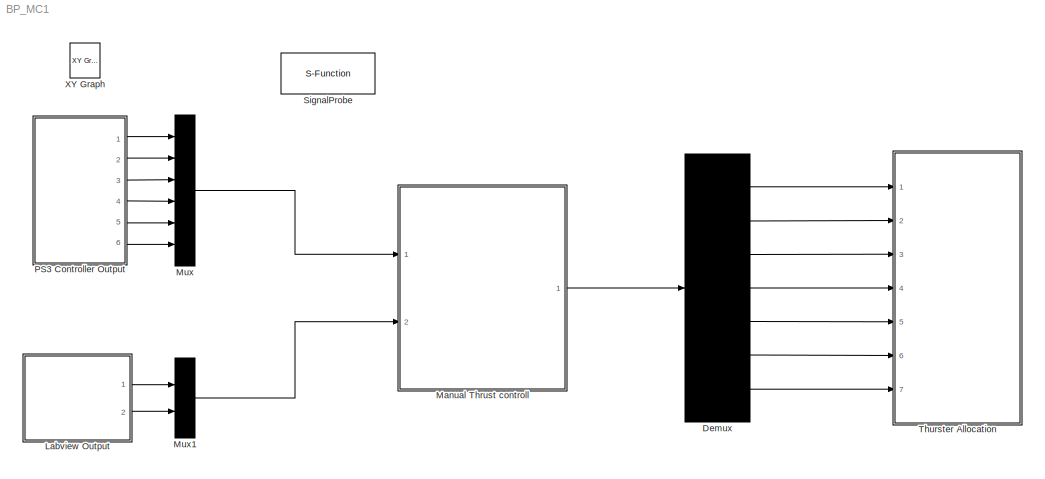
MODEL BP_MC1
KIND model
BLOCK [Demux] Demux
  Outputs = 7
  Ports = [1, 7]
  SID = 66
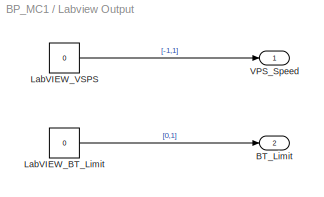
BLOCK [SubSystem] Labview Output
  FunctionWithSeparateData = off
  MaskHideContents = off
  MinAlgLoopOccurrences = off
  Opaque = off
  Ports = [0, 2]
  PropExecContextOutsideSubsystem = off
  RTWSystemCode = Auto
  RequestExecContextInheritance = off
  SID = 42
BLOCK [Outport] Labview Output/BT_Limit
  IconDisplay = Port number
  OutDataType = fixdt(1, 16)
  OutScaling = 2^0
  Port = 2
  SID = 47
BLOCK [Constant] Labview Output/LabVIEW_BT_Limit
  OutDataType = fixdt(1, 16)
  OutScaling = 2^0
  SID = 46
  Value = 0
BLOCK [Constant] Labview Output/LabVIEW_VSPS
  OutDataType = fixdt(1, 16)
  OutScaling = 2^0
  SID = 45
  Value = 0
BLOCK [Outport] Labview Output/VPS_Speed
  IconDisplay = Port number
  OutDataType = fixdt(1, 16)
  OutScaling = 2^0
  SID = 44
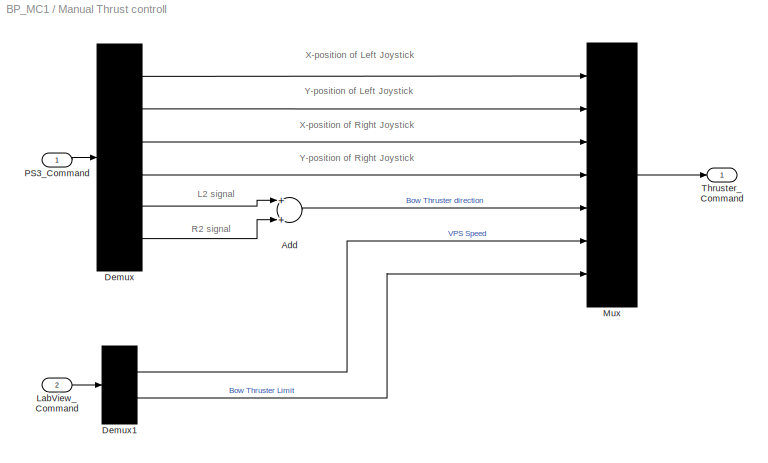
BLOCK [SubSystem] Manual Thrust controll
  FunctionWithSeparateData = off
  MaskHideContents = off
  MinAlgLoopOccurrences = off
  Opaque = off
  Ports = [2, 1]
  PropExecContextOutsideSubsystem = off
  RTWSystemCode = Auto
  RequestExecContextInheritance = off
  SID = 48
BLOCK [Sum] Manual Thrust controll/Add
  InputSameDT = off
  OutDataType = fixdt(1, 16)
  OutDataTypeMode = Inherit via internal rule
  OutDataTypeStr = Inherit: Inherit via internal rule
  OutScaling = 2^-10
  Ports = [2, 1]
  SID = 57
  SaturateOnIntegerOverflow = off
BLOCK [Demux] Manual Thrust controll/Demux
  Outputs = 6
  Ports = [1, 6]
  SID = 55
BLOCK [Demux] Manual Thrust controll/Demux1
  Outputs = 2
  Ports = [1, 2]
  SID = 58
BLOCK [Inport] Manual Thrust controll/LabView_Command
  IconDisplay = Port number
  OutDataType = fixdt(1, 16)
  OutScaling = 2^0
  Port = 2
  SID = 53
BLOCK [Mux] Manual Thrust controll/Mux
  Inputs = 7
  Ports = [7, 1]
  SID = 56
BLOCK [Inport] Manual Thrust controll/PS3_Command
  IconDisplay = Port number
  OutDataType = fixdt(1, 16)
  OutScaling = 2^0
  SID = 49
BLOCK [Outport] Manual Thrust controll/Thruster_Command
  IconDisplay = Port number
  OutDataType = fixdt(1, 16)
  OutScaling = 2^0
  SID = 50
BLOCK [Mux] Mux
  Inputs = 6
  Ports = [6, 1]
  SID = 51
BLOCK [Mux] Mux1
  Inputs = 2
  Ports = [2, 1]
  SID = 52
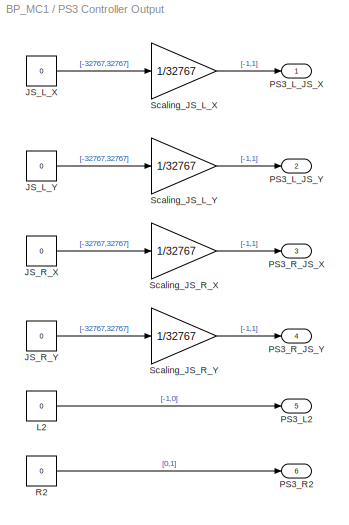
BLOCK [SubSystem] PS3 Controller Output
  FunctionWithSeparateData = off
  MaskHideContents = off
  MinAlgLoopOccurrences = off
  Opaque = off
  Ports = [0, 6]
  PropExecContextOutsideSubsystem = off
  RTWSystemCode = Auto
  RequestExecContextInheritance = off
  SID = 5
BLOCK [Constant] PS3 Controller Output/JS_L_X
  OutDataType = fixdt(1, 16)
  OutScaling = 2^0
  SID = 8
  Value = 0
BLOCK [Constant] PS3 Controller Output/JS_L_Y
  OutDataType = fixdt(1, 16)
  OutScaling = 2^0
  SID = 11
  Value = 0
BLOCK [Constant] PS3 Controller Output/JS_R_X
  OutDataType = fixdt(1, 16)
  OutScaling = 2^0
  SID = 14
  Value = 0
BLOCK [Constant] PS3 Controller Output/JS_R_Y
  OutDataType = fixdt(1, 16)
  OutScaling = 2^0
  SID = 16
  Value = 0
BLOCK [Constant] PS3 Controller Output/L2
  OutDataType = fixdt(1, 16)
  OutScaling = 2^0
  SID = 114
  Value = 0
BLOCK [Outport] PS3 Controller Output/PS3_L2
  IconDisplay = Port number
  OutDataType = fixdt(1, 16)
  OutScaling = 2^0
  Port = 5
  SID = 26
BLOCK [Outport] PS3 Controller Output/PS3_L_JS_X
  IconDisplay = Port number
  OutDataType = fixdt(1, 16)
  OutScaling = 2^0
  SID = 7
BLOCK [Outport] PS3 Controller Output/PS3_L_JS_Y
  IconDisplay = Port number
  OutDataType = fixdt(1, 16)
  OutScaling = 2^0
  Port = 2
  SID = 13
BLOCK [Outport] PS3 Controller Output/PS3_R2
  IconDisplay = Port number
  OutDataType = fixdt(1, 16)
  OutScaling = 2^0
  Port = 6
  SID = 36
BLOCK [Outport] PS3 Controller Output/PS3_R_JS_X
  IconDisplay = Port number
  OutDataType = fixdt(1, 16)
  OutScaling = 2^0
  Port = 3
  SID = 18
BLOCK [Outport] PS3 Controller Output/PS3_R_JS_Y
  IconDisplay = Port number
  OutDataType = fixdt(1, 16)
  OutScaling = 2^0
  Port = 4
  SID = 19
BLOCK [Constant] PS3 Controller Output/R2
  OutDataType = fixdt(1, 16)
  OutScaling = 2^0
  SID = 115
  Value = 0
BLOCK [Gain] PS3 Controller Output/Scaling_JS_L_X
  Gain = 1/32767
  OutDataType = fixdt(1, 16)
  OutDataTypeMode = Inherit via internal rule
  OutDataTypeStr = Inherit: Inherit via internal rule
  OutScaling = 2^0
  ParamDataTypeStr = Inherit: Inherit via internal rule
  ParameterDataType = fixdt(1, 16)
  ParameterDataTypeMode = Inherit via internal rule
  ParameterScaling = 2^0
  SID = 9
  SaturateOnIntegerOverflow = off
BLOCK [Gain] PS3 Controller Output/Scaling_JS_L_Y
  Gain = 1/32767
  OutDataType = fixdt(1, 16)
  OutDataTypeMode = Inherit via internal rule
  OutDataTypeStr = Inherit: Inherit via internal rule
  OutScaling = 2^0
  ParamDataTypeStr = Inherit: Inherit via internal rule
  ParameterDataType = fixdt(1, 16)
  ParameterDataTypeMode = Inherit via internal rule
  ParameterScaling = 2^0
  SID = 12
  SaturateOnIntegerOverflow = off
BLOCK [Gain] PS3 Controller Output/Scaling_JS_R_X
  Gain = 1/32767
  OutDataType = fixdt(1, 16)
  OutDataTypeMode = Inherit via internal rule
  OutDataTypeStr = Inherit: Inherit via internal rule
  OutScaling = 2^0
  ParamDataTypeStr = Inherit: Inherit via internal rule
  ParameterDataType = fixdt(1, 16)
  ParameterDataTypeMode = Inherit via internal rule
  ParameterScaling = 2^0
  SID = 15
  SaturateOnIntegerOverflow = off
BLOCK [Gain] PS3 Controller Output/Scaling_JS_R_Y
  Gain = 1/32767
  OutDataType = fixdt(1, 16)
  OutDataTypeMode = Inherit via internal rule
  OutDataTypeStr = Inherit: Inherit via internal rule
  OutScaling = 2^0
  ParamDataTypeStr = Inherit: Inherit via internal rule
  ParameterDataType = fixdt(1, 16)
  ParameterDataTypeMode = Inherit via internal rule
  ParameterScaling = 2^0
  SID = 17
  SaturateOnIntegerOverflow = off
BLOCK [S-Function] SignalProbe
  Description = Use this block with SIT.
  EnableBusSupport = off
  FunctionName = SignalProbe
  MaskDescription = The LabVIEW Simulation Interface Toolkit uses the SignalProbe block to probe the signals in the model. The SignalProbe block must be on the top level of the model hierarchy. You can have only one SignalProbe block per model file. Do not rename the SignalProbe block. Do not change the name of another model block to SignalProbe.
  MaskIconFrame = on
  MaskIconOpaque = on
  MaskIconRotate = none
  MaskIconUnits = autoscale
  MaskPortRotate = default
  Parameters = 1
  Ports = []
  PreSaveFcn = NISIT_ModelVars;
  SID = 40
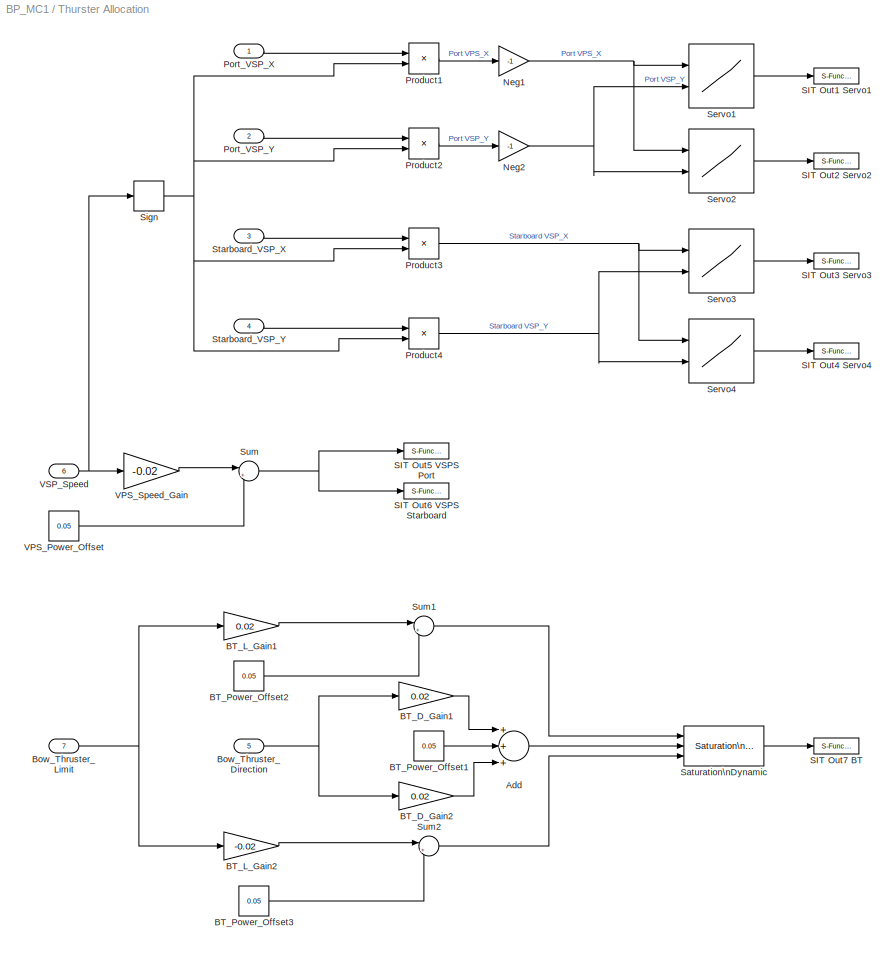
BLOCK [SubSystem] Thurster Allocation
  FunctionWithSeparateData = off
  MaskHideContents = off
  MinAlgLoopOccurrences = off
  Opaque = off
  Ports = [7]
  PropExecContextOutsideSubsystem = off
  RTWSystemCode = Auto
  RequestExecContextInheritance = off
  SID = 62
BLOCK [Sum] Thurster Allocation/Add
  InputSameDT = off
  Inputs = +++
  OutDataType = fixdt(1, 16)
  OutDataTypeMode = Inherit via internal rule
  OutDataTypeStr = Inherit: Inherit via internal rule
  OutScaling = 2^-10
  Ports = [3, 1]
  SID = 97
  SaturateOnIntegerOverflow = off
BLOCK [Gain] Thurster Allocation/BT_D_Gain1
  Gain = 0.02
  OutDataType = fixdt(1, 16)
  OutDataTypeMode = Inherit via internal rule
  OutDataTypeStr = Inherit: Inherit via internal rule
  OutScaling = 2^0
  ParamDataTypeStr = Inherit: Inherit via internal rule
  ParameterDataType = fixdt(1, 16)
  ParameterDataTypeMode = Inherit via internal rule
  ParameterScaling = 2^0
  SID = 99
  SaturateOnIntegerOverflow = off
BLOCK [Gain] Thurster Allocation/BT_D_Gain2
  Gain = 0.02
  OutDataType = fixdt(1, 16)
  OutDataTypeMode = Inherit via internal rule
  OutDataTypeStr = Inherit: Inherit via internal rule
  OutScaling = 2^0
  ParamDataTypeStr = Inherit: Inherit via internal rule
  ParameterDataType = fixdt(1, 16)
  ParameterDataTypeMode = Inherit via internal rule
  ParameterScaling = 2^0
  SID = 100
  SaturateOnIntegerOverflow = off
BLOCK [Gain] Thurster Allocation/BT_L_Gain1
  Gain = 0.02
  OutDataType = fixdt(1, 16)
  OutDataTypeMode = Inherit via internal rule
  OutDataTypeStr = Inherit: Inherit via internal rule
  OutScaling = 2^0
  ParamDataTypeStr = Inherit: Inherit via internal rule
  ParameterDataType = fixdt(1, 16)
  ParameterDataTypeMode = Inherit via internal rule
  ParameterScaling = 2^0
  SID = 105
  SaturateOnIntegerOverflow = off
BLOCK [Gain] Thurster Allocation/BT_L_Gain2
  Gain = -0.02
  OutDataType = fixdt(1, 16)
  OutDataTypeMode = Inherit via internal rule
  OutDataTypeStr = Inherit: Inherit via internal rule
  OutScaling = 2^0
  ParamDataTypeStr = Inherit: Inherit via internal rule
  ParameterDataType = fixdt(1, 16)
  ParameterDataTypeMode = Inherit via internal rule
  ParameterScaling = 2^0
  SID = 106
  SaturateOnIntegerOverflow = off
BLOCK [Constant] Thurster Allocation/BT_Power_Offset1
  OutDataType = fixdt(1, 16)
  OutScaling = 2^0
  SID = 102
  Value = 0.05
BLOCK [Constant] Thurster Allocation/BT_Power_Offset2
  OutDataType = fixdt(1, 16)
  OutScaling = 2^0
  SID = 109
  Value = 0.05
BLOCK [Constant] Thurster Allocation/BT_Power_Offset3
  OutDataType = fixdt(1, 16)
  OutScaling = 2^0
  SID = 110
  Value = 0.05
BLOCK [Inport] Thurster Allocation/Bow_Thruster_Direction
  IconDisplay = Port number
  OutDataType = fixdt(1, 16)
  OutScaling = 2^0
  Port = 5
  SID = 70
BLOCK [Inport] Thurster Allocation/Bow_Thruster_Limit
  IconDisplay = Port number
  OutDataType = fixdt(1, 16)
  OutScaling = 2^0
  Port = 7
  SID = 72
BLOCK [Gain] Thurster Allocation/Neg1
  Gain = -1
  OutDataType = fixdt(1, 16)
  OutDataTypeMode = Inherit via internal rule
  OutDataTypeStr = Inherit: Inherit via internal rule
  OutScaling = 2^0
  ParamDataTypeStr = Inherit: Inherit via internal rule
  ParameterDataType = fixdt(1, 16)
  ParameterDataTypeMode = Inherit via internal rule
  ParameterScaling = 2^0
  SID = 76
  SaturateOnIntegerOverflow = off
BLOCK [Gain] Thurster Allocation/Neg2
  Gain = -1
  OutDataType = fixdt(1, 16)
  OutDataTypeMode = Inherit via internal rule
  OutDataTypeStr = Inherit: Inherit via internal rule
  OutScaling = 2^0
  ParamDataTypeStr = Inherit: Inherit via internal rule
  ParameterDataType = fixdt(1, 16)
  ParameterDataTypeMode = Inherit via internal rule
  ParameterScaling = 2^0
  SID = 77
  SaturateOnIntegerOverflow = off
BLOCK [Inport] Thurster Allocation/Port_VSP_X
  IconDisplay = Port number
  OutDataType = fixdt(1, 16)
  OutScaling = 2^0
  SID = 63
BLOCK [Inport] Thurster Allocation/Port_VSP_Y
  IconDisplay = Port number
  OutDataType = fixdt(1, 16)
  OutScaling = 2^0
  Port = 2
  SID = 67
BLOCK [Product] Thurster Allocation/Product1
  InputSameDT = off
  OutDataType = fixdt(1, 16)
  OutDataTypeMode = Inherit via internal rule
  OutDataTypeStr = Inherit: Inherit via internal rule
  OutScaling = 2^0
  Ports = [2, 1]
  SID = 73
  SaturateOnIntegerOverflow = off
BLOCK [Product] Thurster Allocation/Product2
  InputSameDT = off
  OutDataType = fixdt(1, 16)
  OutDataTypeMode = Inherit via internal rule
  OutDataTypeStr = Inherit: Inherit via internal rule
  OutScaling = 2^0
  Ports = [2, 1]
  SID = 75
  SaturateOnIntegerOverflow = off
BLOCK [Product] Thurster Allocation/Product3
  InputSameDT = off
  OutDataType = fixdt(1, 16)
  OutDataTypeMode = Inherit via internal rule
  OutDataTypeStr = Inherit: Inherit via internal rule
  OutScaling = 2^0
  Ports = [2, 1]
  SID = 82
  SaturateOnIntegerOverflow = off
BLOCK [Product] Thurster Allocation/Product4
  InputSameDT = off
  OutDataType = fixdt(1, 16)
  OutDataTypeMode = Inherit via internal rule
  OutDataTypeStr = Inherit: Inherit via internal rule
  OutScaling = 2^0
  Ports = [2, 1]
  SID = 83
  SaturateOnIntegerOverflow = off
BLOCK [S-Function] Thurster Allocation/SIT Out1 Servo1
  CopyFcn = NI_SIT_IO_callbacks(1);
  DeleteFcn = NI_SIT_IO_callbacks(2);
  EnableBusSupport = off
  FunctionName = NI_SIT_IO
  MaskCallbackString = NI_SIT_IO_callbacks(3);|||NI_SIT_IO_callbacks(4);||
  MaskDescription = Use this outport on any level of nested subsystems to allow the LabVIEW Simulation Interface Toolkit to map hardware to it.
  MaskDisplay = patch([-x x], [-y y], [.90980 .81960 .32156]);\nplot([0 -x x 0], [rad -y y rad]);\nfprintf('SIT%d', portnum);
  MaskEnableString = on,on,on,on,on,on
  MaskIconFrame = off
  MaskIconOpaque = on
  MaskIconRotate = none
  MaskIconUnits = autoscale
  MaskInitialization = NI_SIT_IO_init;
  MaskPortRotate = default
  MaskPromptString = Port number:|Port dimensions (-1 for dynamically sized):|Sample time (-1 for inherited):|Data type:|Signal type:|Block type:
  MaskStyleString = edit,edit,edit,popup(auto|double|single|int8|uint8|int16|uint16|int32|uint32|boolean),popup(auto|real|complex),edit
  MaskTabNameString = Parameters,Parameters,Parameters,Parameters,Parameters,Parameters
  MaskToolTipString = on,on,on,on,on,on
  MaskTunableValueString = off,off,off,off,off,off
  MaskType = SIT Outport
  MaskValueString = 1|-1|-1|auto|auto|0
  MaskVariables = portnum=@1;width=@2;stime=@3;dtype=@4;stype=@5;btype=@6;
  MaskVisibilityString = on,on,on,on,on,off
  Parameters = width dtype portnum stime stype btype
  Ports = [1]
  Priority = 1
  SID = 80
BLOCK [S-Function] Thurster Allocation/SIT Out2 Servo2
  CopyFcn = NI_SIT_IO_callbacks(1);
  DeleteFcn = NI_SIT_IO_callbacks(2);
  EnableBusSupport = off
  FunctionName = NI_SIT_IO
  MaskCallbackString = NI_SIT_IO_callbacks(3);|||NI_SIT_IO_callbacks(4);||
  MaskDescription = Use this outport on any level of nested subsystems to allow the LabVIEW Simulation Interface Toolkit to map hardware to it.
  MaskDisplay = patch([-x x], [-y y], [.90980 .81960 .32156]);\nplot([0 -x x 0], [rad -y y rad]);\nfprintf('SIT%d', portnum);
  MaskEnableString = on,on,on,on,on,on
  MaskIconFrame = off
  MaskIconOpaque = on
  MaskIconRotate = none
  MaskIconUnits = autoscale
  MaskInitialization = NI_SIT_IO_init;
  MaskPortRotate = default
  MaskPromptString = Port number:|Port dimensions (-1 for dynamically sized):|Sample time (-1 for inherited):|Data type:|Signal type:|Block type:
  MaskStyleString = edit,edit,edit,popup(auto|double|single|int8|uint8|int16|uint16|int32|uint32|boolean),popup(auto|real|complex),edit
  MaskTabNameString = Parameters,Parameters,Parameters,Parameters,Parameters,Parameters
  MaskToolTipString = on,on,on,on,on,on
  MaskTunableValueString = off,off,off,off,off,off
  MaskType = SIT Outport
  MaskValueString = 2|-1|-1|auto|auto|0
  MaskVariables = portnum=@1;width=@2;stime=@3;dtype=@4;stype=@5;btype=@6;
  MaskVisibilityString = on,on,on,on,on,off
  Parameters = width dtype portnum stime stype btype
  Ports = [1]
  Priority = 2
  SID = 81
BLOCK [S-Function] Thurster Allocation/SIT Out3 Servo3
  CopyFcn = NI_SIT_IO_callbacks(1);
  DeleteFcn = NI_SIT_IO_callbacks(2);
  EnableBusSupport = off
  FunctionName = NI_SIT_IO
  MaskCallbackString = NI_SIT_IO_callbacks(3);|||NI_SIT_IO_callbacks(4);||
  MaskDescription = Use this outport on any level of nested subsystems to allow the LabVIEW Simulation Interface Toolkit to map hardware to it.
  MaskDisplay = patch([-x x], [-y y], [.90980 .81960 .32156]);\nplot([0 -x x 0], [rad -y y rad]);\nfprintf('SIT%d', portnum);
  MaskEnableString = on,on,on,on,on,on
  MaskIconFrame = off
  MaskIconOpaque = on
  MaskIconRotate = none
  MaskIconUnits = autoscale
  MaskInitialization = NI_SIT_IO_init;
  MaskPortRotate = default
  MaskPromptString = Port number:|Port dimensions (-1 for dynamically sized):|Sample time (-1 for inherited):|Data type:|Signal type:|Block type:
  MaskStyleString = edit,edit,edit,popup(auto|double|single|int8|uint8|int16|uint16|int32|uint32|boolean),popup(auto|real|complex),edit
  MaskTabNameString = Parameters,Parameters,Parameters,Parameters,Parameters,Parameters
  MaskToolTipString = on,on,on,on,on,on
  MaskTunableValueString = off,off,off,off,off,off
  MaskType = SIT Outport
  MaskValueString = 3|-1|-1|auto|auto|0
  MaskVariables = portnum=@1;width=@2;stime=@3;dtype=@4;stype=@5;btype=@6;
  MaskVisibilityString = on,on,on,on,on,off
  Parameters = width dtype portnum stime stype btype
  Ports = [1]
  Priority = 3
  SID = 87
BLOCK [S-Function] Thurster Allocation/SIT Out4 Servo4
  CopyFcn = NI_SIT_IO_callbacks(1);
  DeleteFcn = NI_SIT_IO_callbacks(2);
  EnableBusSupport = off
  FunctionName = NI_SIT_IO
  MaskCallbackString = NI_SIT_IO_callbacks(3);|||NI_SIT_IO_callbacks(4);||
  MaskDescription = Use this outport on any level of nested subsystems to allow the LabVIEW Simulation Interface Toolkit to map hardware to it.
  MaskDisplay = patch([-x x], [-y y], [.90980 .81960 .32156]);\nplot([0 -x x 0], [rad -y y rad]);\nfprintf('SIT%d', portnum);
  MaskEnableString = on,on,on,on,on,on
  MaskIconFrame = off
  MaskIconOpaque = on
  MaskIconRotate = none
  MaskIconUnits = autoscale
  MaskInitialization = NI_SIT_IO_init;
  MaskPortRotate = default
  MaskPromptString = Port number:|Port dimensions (-1 for dynamically sized):|Sample time (-1 for inherited):|Data type:|Signal type:|Block type:
  MaskStyleString = edit,edit,edit,popup(auto|double|single|int8|uint8|int16|uint16|int32|uint32|boolean),popup(auto|real|complex),edit
  MaskTabNameString = Parameters,Parameters,Parameters,Parameters,Parameters,Parameters
  MaskToolTipString = on,on,on,on,on,on
  MaskTunableValueString = off,off,off,off,off,off
  MaskType = SIT Outport
  MaskValueString = 4|-1|-1|auto|auto|0
  MaskVariables = portnum=@1;width=@2;stime=@3;dtype=@4;stype=@5;btype=@6;
  MaskVisibilityString = on,on,on,on,on,off
  Parameters = width dtype portnum stime stype btype
  Ports = [1]
  Priority = 4
  SID = 88
BLOCK [S-Function] Thurster Allocation/SIT Out5 VSPS Port 
  CopyFcn = NI_SIT_IO_callbacks(1);
  DeleteFcn = NI_SIT_IO_callbacks(2);
  EnableBusSupport = off
  FunctionName = NI_SIT_IO
  MaskCallbackString = NI_SIT_IO_callbacks(3);|||NI_SIT_IO_callbacks(4);||
  MaskDescription = Use this outport on any level of nested subsystems to allow the LabVIEW Simulation Interface Toolkit to map hardware to it.
  MaskDisplay = patch([-x x], [-y y], [.90980 .81960 .32156]);\nplot([0 -x x 0], [rad -y y rad]);\nfprintf('SIT%d', portnum);
  MaskEnableString = on,on,on,on,on,on
  MaskIconFrame = off
  MaskIconOpaque = on
  MaskIconRotate = none
  MaskIconUnits = autoscale
  MaskInitialization = NI_SIT_IO_init;
  MaskPortRotate = default
  MaskPromptString = Port number:|Port dimensions (-1 for dynamically sized):|Sample time (-1 for inherited):|Data type:|Signal type:|Block type:
  MaskStyleString = edit,edit,edit,popup(auto|double|single|int8|uint8|int16|uint16|int32|uint32|boolean),popup(auto|real|complex),edit
  MaskTabNameString = Parameters,Parameters,Parameters,Parameters,Parameters,Parameters
  MaskToolTipString = on,on,on,on,on,on
  MaskTunableValueString = off,off,off,off,off,off
  MaskType = SIT Outport
  MaskValueString = 41|-1|-1|auto|auto|0
  MaskVariables = portnum=@1;width=@2;stime=@3;dtype=@4;stype=@5;btype=@6;
  MaskVisibilityString = on,on,on,on,on,off
  Parameters = width dtype portnum stime stype btype
  Ports = [1]
  Priority = 41
  SID = 94
BLOCK [S-Function] Thurster Allocation/SIT Out6 VSPS Starboard
  CopyFcn = NI_SIT_IO_callbacks(1);
  DeleteFcn = NI_SIT_IO_callbacks(2);
  EnableBusSupport = off
  FunctionName = NI_SIT_IO
  MaskCallbackString = NI_SIT_IO_callbacks(3);|||NI_SIT_IO_callbacks(4);||
  MaskDescription = Use this outport on any level of nested subsystems to allow the LabVIEW Simulation Interface Toolkit to map hardware to it.
  MaskDisplay = patch([-x x], [-y y], [.90980 .81960 .32156]);\nplot([0 -x x 0], [rad -y y rad]);\nfprintf('SIT%d', portnum);
  MaskEnableString = on,on,on,on,on,on
  MaskIconFrame = off
  MaskIconOpaque = on
  MaskIconRotate = none
  MaskIconUnits = autoscale
  MaskInitialization = NI_SIT_IO_init;
  MaskPortRotate = default
  MaskPromptString = Port number:|Port dimensions (-1 for dynamically sized):|Sample time (-1 for inherited):|Data type:|Signal type:|Block type:
  MaskStyleString = edit,edit,edit,popup(auto|double|single|int8|uint8|int16|uint16|int32|uint32|boolean),popup(auto|real|complex),edit
  MaskTabNameString = Parameters,Parameters,Parameters,Parameters,Parameters,Parameters
  MaskToolTipString = on,on,on,on,on,on
  MaskTunableValueString = off,off,off,off,off,off
  MaskType = SIT Outport
  MaskValueString = 42|-1|-1|auto|auto|0
  MaskVariables = portnum=@1;width=@2;stime=@3;dtype=@4;stype=@5;btype=@6;
  MaskVisibilityString = on,on,on,on,on,off
  Parameters = width dtype portnum stime stype btype
  Ports = [1]
  Priority = 42
  SID = 95
BLOCK [S-Function] Thurster Allocation/SIT Out7 BT
  CopyFcn = NI_SIT_IO_callbacks(1);
  DeleteFcn = NI_SIT_IO_callbacks(2);
  EnableBusSupport = off
  FunctionName = NI_SIT_IO
  MaskCallbackString = NI_SIT_IO_callbacks(3);|||NI_SIT_IO_callbacks(4);||
  MaskDescription = Use this outport on any level of nested subsystems to allow the LabVIEW Simulation Interface Toolkit to map hardware to it.
  MaskDisplay = patch([-x x], [-y y], [.90980 .81960 .32156]);\nplot([0 -x x 0], [rad -y y rad]);\nfprintf('SIT%d', portnum);
  MaskEnableString = on,on,on,on,on,on
  MaskIconFrame = off
  MaskIconOpaque = on
  MaskIconRotate = none
  MaskIconUnits = autoscale
  MaskInitialization = NI_SIT_IO_init;
  MaskPortRotate = default
  MaskPromptString = Port number:|Port dimensions (-1 for dynamically sized):|Sample time (-1 for inherited):|Data type:|Signal type:|Block type:
  MaskStyleString = edit,edit,edit,popup(auto|double|single|int8|uint8|int16|uint16|int32|uint32|boolean),popup(auto|real|complex),edit
  MaskTabNameString = Parameters,Parameters,Parameters,Parameters,Parameters,Parameters
  MaskToolTipString = on,on,on,on,on,on
  MaskTunableValueString = off,off,off,off,off,off
  MaskType = SIT Outport
  MaskValueString = 43|-1|-1|auto|auto|0
  MaskVariables = portnum=@1;width=@2;stime=@3;dtype=@4;stype=@5;btype=@6;
  MaskVisibilityString = on,on,on,on,on,off
  Parameters = width dtype portnum stime stype btype
  Ports = [1]
  Priority = 43
  SID = 111
BLOCK [Reference] Thurster Allocation/Saturation\nDynamic  REF=simulink/Discontinuities/Saturation\nDynamic
  DoSatur = off
  FunctionWithSeparateData = off
  LockScale = off
  OutDataType = fixdt(1, 16)
  OutDataTypeStr = Inherit: Same as second input
  OutMax = []
  OutMin = []
  OutScaling = 2^-10
  OutputDataTypeScalingMode = Same as second input
  Ports = [3, 1]
  RTWMemSecDataConstants = Inherit from model
  RTWMemSecDataInternal = Inherit from model
  RTWMemSecDataParameters = Inherit from model
  RTWMemSecFuncExecute = Inherit from model
  RTWMemSecFuncInitTerm = Inherit from model
  RndMeth = Floor
  SID = 104
  ShowPortLabels = FromPortIcon
  SourceBlock = simulink/Discontinuities/Saturation\nDynamic
  SourceType = Saturation Dynamic
  SystemSampleTime = -1
BLOCK [Lookup2D] Thurster Allocation/Servo1
  ColumnIndex = [-1,0,1]
  InputSameDT = off
  OutDataType = fixdt(1, 16)
  OutScaling = 2^0
  RowIndex = [-1,0,1]
  SID = 78
  SaturateOnIntegerOverflow = off
  Table = reshape([0.06,0.0495363,0.043301,0.06,0.052446,0.043301,0.06,0.0541518,0.043301],3,3)
BLOCK [Lookup2D] Thurster Allocation/Servo2
  ColumnIndex = [-1,0,1]
  InputSameDT = off
  OutDataType = fixdt(1, 16)
  OutScaling = 2^0
  RowIndex = [-1,0,1]
  SID = 79
  SaturateOnIntegerOverflow = off
  Table = reshape([0.03860880,0.0386088,0.03860880,0.0459941,0.0477243,0.0500953,0.057,0.057,0.057],3,3)
BLOCK [Lookup2D] Thurster Allocation/Servo3
  ColumnIndex = [-1,0,1]
  InputSameDT = off
  OutDataType = fixdt(1, 16)
  OutScaling = 2^0
  RowIndex = [-1,0,1]
  SID = 85
  SaturateOnIntegerOverflow = off
  Table = reshape([0.0640809,0.0640809,0.0640809,0.0539629,0.0541315,0.0556492,0.0442664,0.0442664,0.0442664],3,3)
BLOCK [Lookup2D] Thurster Allocation/Servo4
  ColumnIndex = [-1,0,1]
  InputSameDT = off
  OutDataType = fixdt(1, 16)
  OutScaling = 2^0
  RowIndex = [-1,0,1]
  SID = 86
  SaturateOnIntegerOverflow = off
  Table = reshape([0.0602867,0.0470489,0.0403879,0.0602867,0.049747,0.0403879,0.0602867,0.0526138,0.0403879],3,3)
BLOCK [Signum] Thurster Allocation/Sign
  SID = 91
BLOCK [Inport] Thurster Allocation/Starboard_VSP_X
  IconDisplay = Port number
  OutDataType = fixdt(1, 16)
  OutScaling = 2^0
  Port = 3
  SID = 68
BLOCK [Inport] Thurster Allocation/Starboard_VSP_Y
  IconDisplay = Port number
  OutDataType = fixdt(1, 16)
  OutScaling = 2^0
  Port = 4
  SID = 69
BLOCK [Sum] Thurster Allocation/Sum
  IconShape = round
  InputSameDT = off
  Inputs = |++
  OutDataType = fixdt(1, 16)
  OutDataTypeMode = Inherit via internal rule
  OutDataTypeStr = Inherit: Inherit via internal rule
  OutScaling = 2^0
  Ports = [2, 1]
  SID = 93
  SaturateOnIntegerOverflow = off
BLOCK [Sum] Thurster Allocation/Sum1
  IconShape = round
  InputSameDT = off
  Inputs = |++
  OutDataType = fixdt(1, 16)
  OutDataTypeMode = Inherit via internal rule
  OutDataTypeStr = Inherit: Inherit via internal rule
  OutScaling = 2^0
  Ports = [2, 1]
  SID = 107
  SaturateOnIntegerOverflow = off
BLOCK [Sum] Thurster Allocation/Sum2
  IconShape = round
  InputSameDT = off
  Inputs = |++
  OutDataType = fixdt(1, 16)
  OutDataTypeMode = Inherit via internal rule
  OutDataTypeStr = Inherit: Inherit via internal rule
  OutScaling = 2^0
  Ports = [2, 1]
  SID = 108
  SaturateOnIntegerOverflow = off
BLOCK [Constant] Thurster Allocation/VPS_Power_Offset
  OutDataType = fixdt(1, 16)
  OutScaling = 2^0
  SID = 90
  Value = 0.05
BLOCK [Gain] Thurster Allocation/VPS_Speed_Gain
  Gain = -0.02
  OutDataType = fixdt(1, 16)
  OutDataTypeMode = Inherit via internal rule
  OutDataTypeStr = Inherit: Inherit via internal rule
  OutScaling = 2^0
  ParamDataTypeStr = Inherit: Inherit via internal rule
  ParameterDataType = fixdt(1, 16)
  ParameterDataTypeMode = Inherit via internal rule
  ParameterScaling = 2^0
  SID = 89
  SaturateOnIntegerOverflow = off
BLOCK [Inport] Thurster Allocation/VSP_Speed
  IconDisplay = Port number
  OutDataType = fixdt(1, 16)
  OutScaling = 2^0
  Port = 6
  SID = 71
BLOCK [Reference] XY Graph  REF=simulink/Sinks/XY Graph
  FunctionWithSeparateData = off
  IOType = viewer
  Ports = [2]
  RTWMemSecDataConstants = Inherit from model
  RTWMemSecDataInternal = Inherit from model
  RTWMemSecDataParameters = Inherit from model
  RTWMemSecFuncExecute = Inherit from model
  RTWMemSecFuncInitTerm = Inherit from model
  SID = 20
  ShowPortLabels = FromPortIcon
  SourceBlock = simulink/Sinks/XY Graph
  SourceType = XY scope.
  SystemSampleTime = -1
  st = -1
  xmax = 1
  xmin = -1
  ymax = 1
  ymin = -1
ANNOTATION Manual Thrust controll: L2 signal
ANNOTATION Manual Thrust controll: R2 signal
ANNOTATION Manual Thrust controll: X-position of Left Joystick
ANNOTATION Manual Thrust controll: X-position of Right Joystick
ANNOTATION Manual Thrust controll: Y-position of Left Joystick
ANNOTATION Manual Thrust controll: Y-position of Right Joystick
LINE Demux:1 -> Thurster Allocation:1
LINE Demux:2 -> Thurster Allocation:2
LINE Demux:3 -> Thurster Allocation:3
LINE Demux:4 -> Thurster Allocation:4
LINE Demux:5 -> Thurster Allocation:5
LINE Demux:6 -> Thurster Allocation:6
LINE Demux:7 -> Thurster Allocation:7
LINE Labview Output/LabVIEW_BT_Limit:1 -> Labview Output/BT_Limit:1
LINE Labview Output/LabVIEW_VSPS:1 -> Labview Output/VPS_Speed:1
LINE Labview Output:1 -> Mux1:1
LINE Labview Output:2 -> Mux1:2
LINE Manual Thrust controll/Add:1 -> Manual Thrust controll/Mux:5
LINE Manual Thrust controll/Demux1:1 -> Manual Thrust controll/Mux:6
LINE Manual Thrust controll/Demux1:2 -> Manual Thrust controll/Mux:7
LINE Manual Thrust controll/Demux:1 -> Manual Thrust controll/Mux:1
LINE Manual Thrust controll/Demux:2 -> Manual Thrust controll/Mux:2
LINE Manual Thrust controll/Demux:3 -> Manual Thrust controll/Mux:3
LINE Manual Thrust controll/Demux:4 -> Manual Thrust controll/Mux:4
LINE Manual Thrust controll/Demux:5 -> Manual Thrust controll/Add:1
LINE Manual Thrust controll/Demux:6 -> Manual Thrust controll/Add:2
LINE Manual Thrust controll/LabView_Command:1 -> Manual Thrust controll/Demux1:1
LINE Manual Thrust controll/Mux:1 -> Manual Thrust controll/Thruster_Command:1
LINE Manual Thrust controll/PS3_Command:1 -> Manual Thrust controll/Demux:1
LINE Manual Thrust controll:1 -> Demux:1
LINE Mux1:1 -> Manual Thrust controll:2
LINE Mux:1 -> Manual Thrust controll:1
LINE PS3 Controller Output/JS_L_X:1 -> PS3 Controller Output/Scaling_JS_L_X:1
LINE PS3 Controller Output/JS_L_Y:1 -> PS3 Controller Output/Scaling_JS_L_Y:1
LINE PS3 Controller Output/JS_R_X:1 -> PS3 Controller Output/Scaling_JS_R_X:1
LINE PS3 Controller Output/JS_R_Y:1 -> PS3 Controller Output/Scaling_JS_R_Y:1
LINE PS3 Controller Output/L2:1 -> PS3 Controller Output/PS3_L2:1
LINE PS3 Controller Output/R2:1 -> PS3 Controller Output/PS3_R2:1
LINE PS3 Controller Output/Scaling_JS_L_X:1 -> PS3 Controller Output/PS3_L_JS_X:1
LINE PS3 Controller Output/Scaling_JS_L_Y:1 -> PS3 Controller Output/PS3_L_JS_Y:1
LINE PS3 Controller Output/Scaling_JS_R_X:1 -> PS3 Controller Output/PS3_R_JS_X:1
LINE PS3 Controller Output/Scaling_JS_R_Y:1 -> PS3 Controller Output/PS3_R_JS_Y:1
LINE PS3 Controller Output:1 -> Mux:1
LINE PS3 Controller Output:2 -> Mux:2
LINE PS3 Controller Output:3 -> Mux:3
LINE PS3 Controller Output:4 -> Mux:4
LINE PS3 Controller Output:5 -> Mux:5
LINE PS3 Controller Output:6 -> Mux:6
LINE Thurster Allocation/Add:1 -> Thurster Allocation/Saturation\nDynamic:2
LINE Thurster Allocation/BT_D_Gain1:1 -> Thurster Allocation/Add:1
LINE Thurster Allocation/BT_D_Gain2:1 -> Thurster Allocation/Add:3
LINE Thurster Allocation/BT_L_Gain1:1 -> Thurster Allocation/Sum1:1
LINE Thurster Allocation/BT_L_Gain2:1 -> Thurster Allocation/Sum2:1
LINE Thurster Allocation/BT_Power_Offset1:1 -> Thurster Allocation/Add:2
LINE Thurster Allocation/BT_Power_Offset2:1 -> Thurster Allocation/Sum1:2
LINE Thurster Allocation/BT_Power_Offset3:1 -> Thurster Allocation/Sum2:2
NET Thurster Allocation/Bow_Thruster_Direction:1 -> Thurster Allocation/BT_D_Gain1:1, Thurster Allocation/BT_D_Gain2:1
NET Thurster Allocation/Bow_Thruster_Limit:1 -> Thurster Allocation/BT_L_Gain1:1, Thurster Allocation/BT_L_Gain2:1
NET Thurster Allocation/Neg1:1 -> Thurster Allocation/Servo1:1, Thurster Allocation/Servo2:1
NET Thurster Allocation/Neg2:1 -> Thurster Allocation/Servo1:2, Thurster Allocation/Servo2:2
LINE Thurster Allocation/Port_VSP_X:1 -> Thurster Allocation/Product1:1
LINE Thurster Allocation/Port_VSP_Y:1 -> Thurster Allocation/Product2:1
LINE Thurster Allocation/Product1:1 -> Thurster Allocation/Neg1:1
LINE Thurster Allocation/Product2:1 -> Thurster Allocation/Neg2:1
NET Thurster Allocation/Product3:1 -> Thurster Allocation/Servo3:1, Thurster Allocation/Servo4:1
NET Thurster Allocation/Product4:1 -> Thurster Allocation/Servo3:2, Thurster Allocation/Servo4:2
LINE Thurster Allocation/Saturation\nDynamic:1 -> Thurster Allocation/SIT Out7 BT:1
LINE Thurster Allocation/Servo1:1 -> Thurster Allocation/SIT Out1 Servo1:1
LINE Thurster Allocation/Servo2:1 -> Thurster Allocation/SIT Out2 Servo2:1
LINE Thurster Allocation/Servo3:1 -> Thurster Allocation/SIT Out3 Servo3:1
LINE Thurster Allocation/Servo4:1 -> Thurster Allocation/SIT Out4 Servo4:1
NET Thurster Allocation/Sign:1 -> Thurster Allocation/Product1:2, Thurster Allocation/Product2:2, Thurster Allocation/Product3:2, Thurster Allocation/Product4:2
LINE Thurster Allocation/Starboard_VSP_X:1 -> Thurster Allocation/Product3:1
LINE Thurster Allocation/Starboard_VSP_Y:1 -> Thurster Allocation/Product4:1
LINE Thurster Allocation/Sum1:1 -> Thurster Allocation/Saturation\nDynamic:1
LINE Thurster Allocation/Sum2:1 -> Thurster Allocation/Saturation\nDynamic:3
NET Thurster Allocation/Sum:1 -> Thurster Allocation/SIT Out5 VSPS Port :1, Thurster Allocation/SIT Out6 VSPS Starboard:1
LINE Thurster Allocation/VPS_Power_Offset:1 -> Thurster Allocation/Sum:2
LINE Thurster Allocation/VPS_Speed_Gain:1 -> Thurster Allocation/Sum:1
NET Thurster Allocation/VSP_Speed:1 -> Thurster Allocation/Sign:1, Thurster Allocation/VPS_Speed_Gain:1
note: NET lines group one-source signal fan-out (src -> all destinations, sorted); 1:1 wires keep LINE
